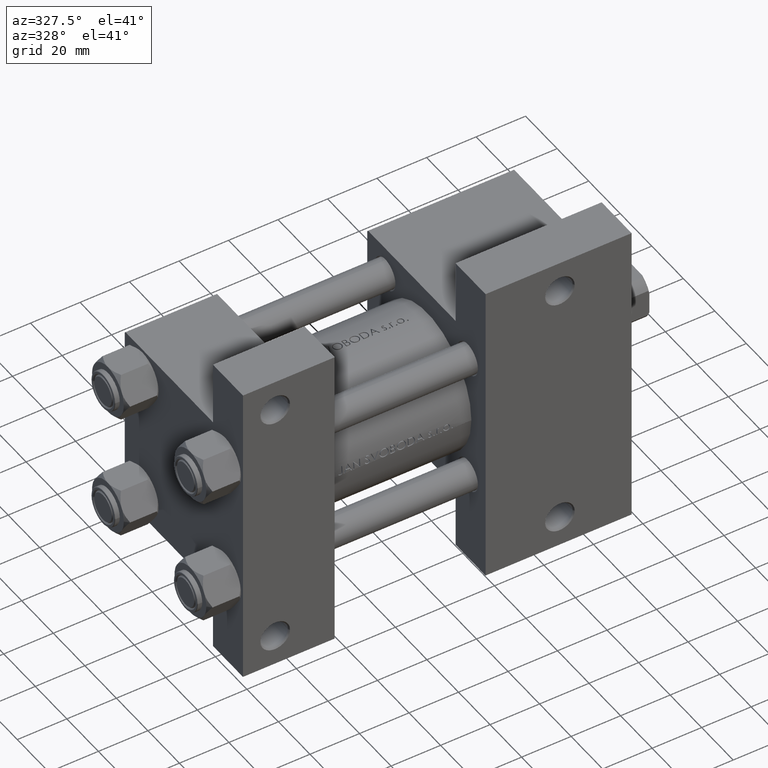
[diagram: clean part render]
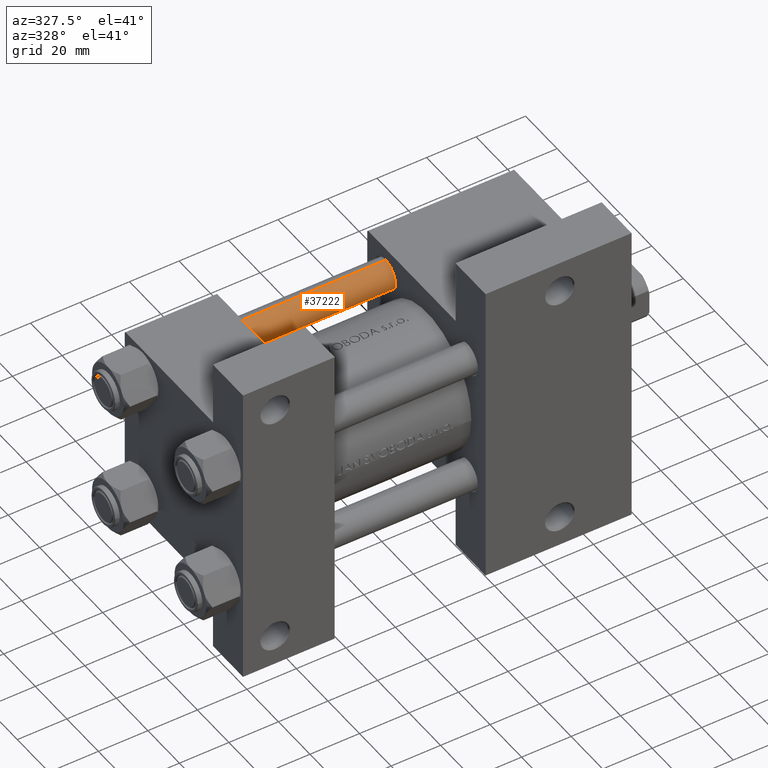
[diagram: same view with one face highlighted and labeled with its STEP entity id]
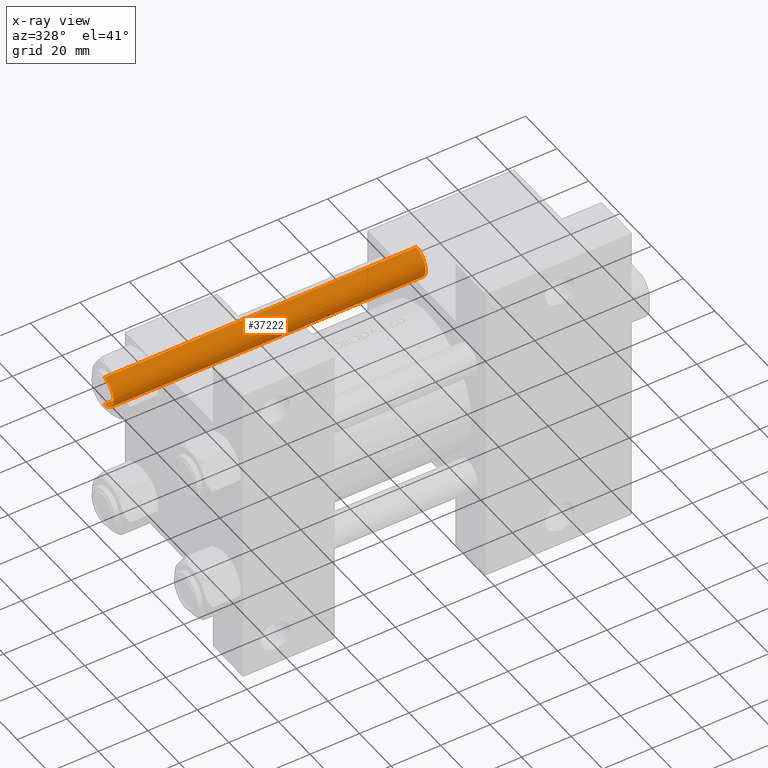
[diagram: x-ray of the same camera — body ghosted, the highlighted face saturated]
A machine part, auxiliary view. The second image highlights one B-rep face of the part: STEP entity #37222.
The next image is the same camera in x-ray: the body ghosted, the highlighted face saturated — about 0% of this face is hidden behind the body in this view.
In plain terms, the highlighted cylindrical surface (edge-blend (fillet) strip) has radius 6 mm, axis along (-1, -0, -0).
Its self-contained STEP definition (entity closure, byte-faithful):
#112 = DIRECTION ( 'NONE',  ( -0.000000000000000000, -0.000000000000000000, -1.000000000000000000 ) ) ;
#1092 = CARTESIAN_POINT ( 'NONE',  ( 6.000000000000000888, 7.347880794884120722E-16, 0.5000000000000004441 ) ) ;
#2495 = ORIENTED_EDGE ( 'NONE', *, *, #35443, .T. ) ;
#2707 = AXIS2_PLACEMENT_3D ( 'NONE', #4253, #42189, #7749 ) ;
#3612 = DIRECTION ( 'NONE',  ( 0.000000000000000000, 0.000000000000000000, -1.000000000000000000 ) ) ;
#4253 = CARTESIAN_POINT ( 'NONE',  ( 0.000000000000000000, 0.000000000000000000, 127.0000000000000000 ) ) ;
#5591 = EDGE_CURVE ( 'NONE', #17234, #6859, #38209, .T. ) ;
#5761 = AXIS2_PLACEMENT_3D ( 'NONE', #41309, #3612, #7331 ) ;
#6648 = CARTESIAN_POINT ( 'NONE',  ( 0.000000000000000000, 0.000000000000000000, 0.5000000000000004441 ) ) ;
#6859 = VERTEX_POINT ( 'NONE', #17610 ) ;
#7331 = DIRECTION ( 'NONE',  ( 1.000000000000000000, 0.000000000000000000, 0.000000000000000000 ) ) ;
#7749 = DIRECTION ( 'NONE',  ( -1.000000000000000000, 0.000000000000000000, 0.000000000000000000 ) ) ;
#8972 = AXIS2_PLACEMENT_3D ( 'NONE', #6648, #22005, #14110 ) ;
#10574 = CARTESIAN_POINT ( 'NONE',  ( -6.000000000000000888, 0.000000000000000000, 0.5000000000000004441 ) ) ;
#10970 = VECTOR ( 'NONE', #11612, 1000.000000000000000 ) ;
#11612 = DIRECTION ( 'NONE',  ( -0.000000000000000000, -0.000000000000000000, -1.000000000000000000 ) ) ;
#14110 = DIRECTION ( 'NONE',  ( 1.000000000000000000, 0.000000000000000000, 0.000000000000000000 ) ) ;
#15131 = ORIENTED_EDGE ( 'NONE', *, *, #28196, .F. ) ;
#15812 = LINE ( 'NONE', #45566, #10970 ) ;
#17234 = VERTEX_POINT ( 'NONE', #42967 ) ;
#17610 = CARTESIAN_POINT ( 'NONE',  ( -6.000000000000000888, 0.000000000000000000, 126.4999999999999716 ) ) ;
#22005 = DIRECTION ( 'NONE',  ( -0.000000000000000000, -0.000000000000000000, 1.000000000000000000 ) ) ;
#22430 = LINE ( 'NONE', #42018, #28399 ) ;
#22766 = VERTEX_POINT ( 'NONE', #10574 ) ;
#26366 = EDGE_CURVE ( 'NONE', #6859, #22766, #15812, .T. ) ;
#26862 = ORIENTED_EDGE ( 'NONE', *, *, #26366, .T. ) ;
#28196 = EDGE_CURVE ( 'NONE', #17234, #29192, #22430, .T. ) ;
#28399 = VECTOR ( 'NONE', #112, 1000.000000000000000 ) ;
#29192 = VERTEX_POINT ( 'NONE', #1092 ) ;
#31288 = EDGE_LOOP ( 'NONE', ( #15131, #42382, #26862, #2495 ) ) ;
#34027 = FACE_OUTER_BOUND ( 'NONE', #31288, .T. ) ;
#35443 = EDGE_CURVE ( 'NONE', #22766, #29192, #41439, .T. ) ;
#37222 = ADVANCED_FACE ( 'NONE', ( #34027 ), #37273, .T. ) ;
#37273 = CYLINDRICAL_SURFACE ( 'NONE', #2707, 6.000000000000000888 ) ;
#38209 = CIRCLE ( 'NONE', #5761, 6.000000000000000888 ) ;
#41309 = CARTESIAN_POINT ( 'NONE',  ( 0.000000000000000000, 0.000000000000000000, 126.4999999999999716 ) ) ;
#41439 = CIRCLE ( 'NONE', #8972, 6.000000000000000888 ) ;
#42018 = CARTESIAN_POINT ( 'NONE',  ( 6.000000000000000888, 7.347880794884120722E-16, 127.0000000000000000 ) ) ;
#42189 = DIRECTION ( 'NONE',  ( -0.000000000000000000, -0.000000000000000000, -1.000000000000000000 ) ) ;
#42382 = ORIENTED_EDGE ( 'NONE', *, *, #5591, .T. ) ;
#42967 = CARTESIAN_POINT ( 'NONE',  ( 6.000000000000000888, 7.347880794884120722E-16, 126.4999999999999716 ) ) ;
#45566 = CARTESIAN_POINT ( 'NONE',  ( -6.000000000000000888, 0.000000000000000000, 127.0000000000000000 ) ) ;